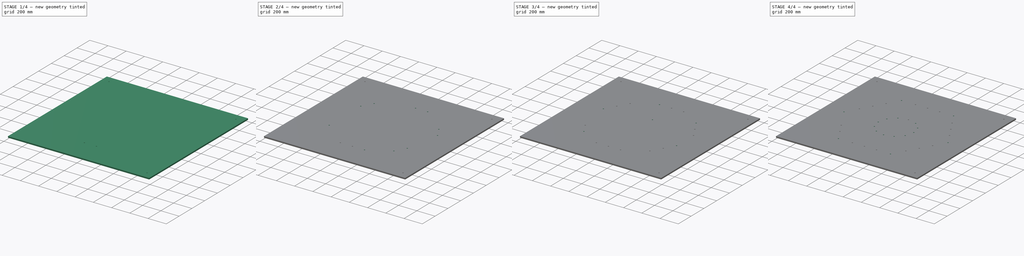
[diagram: build sequence overview — one tinted view per stage of 4, left to right]
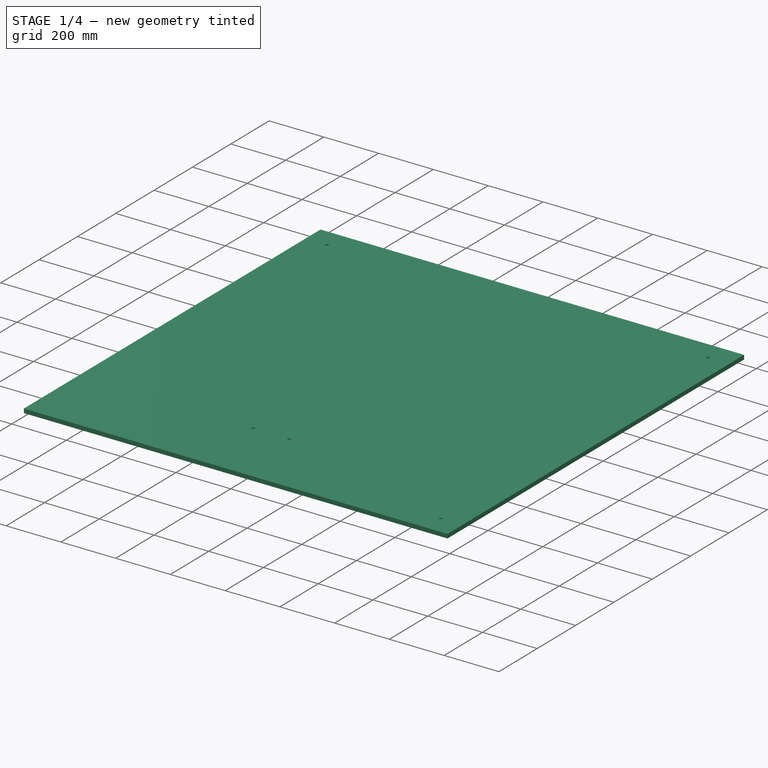
[diagram: stage 1 of 4 — iso view after this stage's code; geometry added in this stage tinted green]
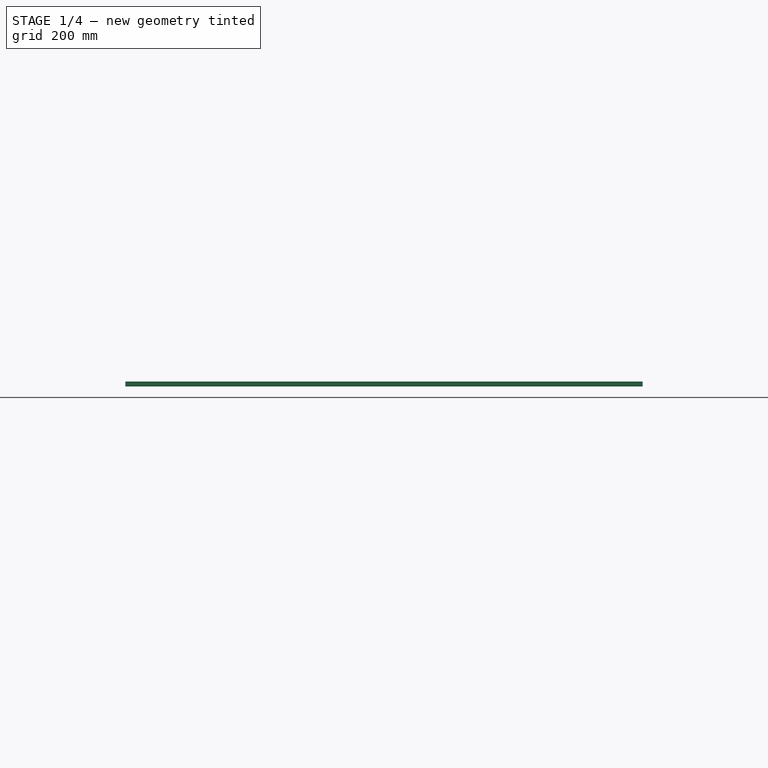
[diagram: stage 1 of 4 — front view after this stage's code; geometry added in this stage tinted green]
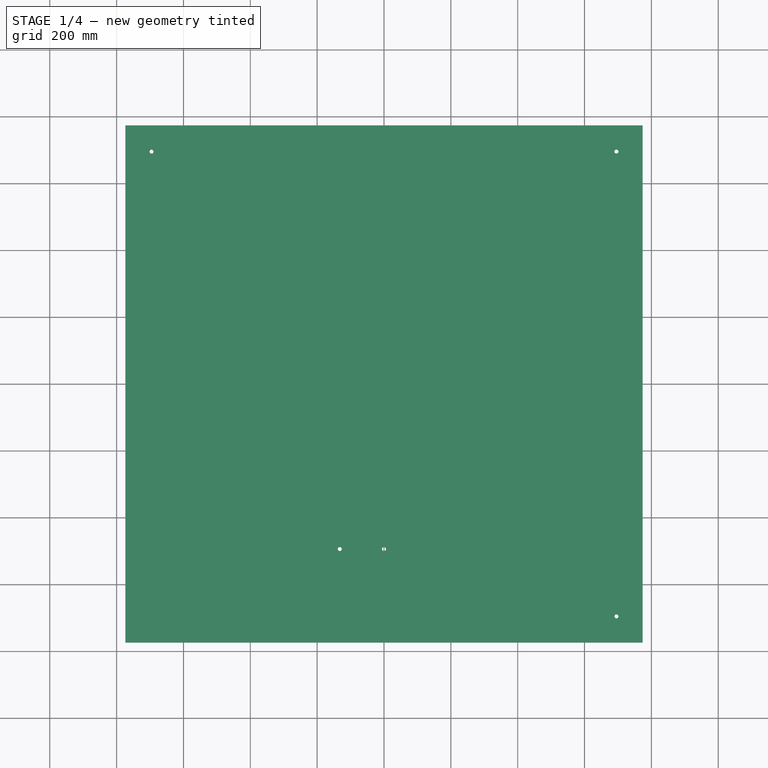
[diagram: stage 1 of 4 — top view after this stage's code; geometry added in this stage tinted green]
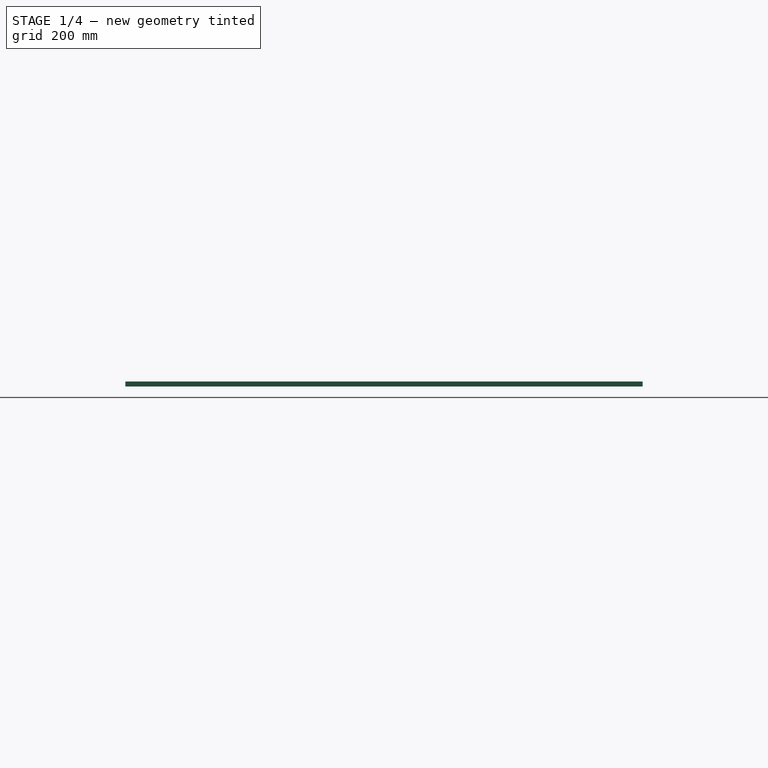
[diagram: stage 1 of 4 — right view after this stage's code; geometry added in this stage tinted green]
FCSTD DOCUMENT  (FreeCAD 1.0R39109 (Git))
Label: Stator_Mold_BoltShaftPattern_Hexagonal
License: All rights reserved
LicenseURL: http://en.wikipedia.org/wiki/All_rights_reserved
objects: Sketcher::SketchObject×5, PartDesign::Pocket×5, PartDesign::PolarPattern×5, Spreadsheet::Sheet×1, PartDesign::Plane×1, PartDesign::SubShapeBinder×1, PartDesign::FeatureBase×1, PartDesign::Body×1
note: 40 computed .brp shape members not serialized (recipe doc carries the construction recipe); baked Part::Feature solids carry a one-line shape summary decoded from their .brp
EXTERNAL_REF file=../../../Master_of_Puppets.FCStd obj=Alternator
EXTERNAL_REF file=../../../Master_of_Puppets.FCStd obj=Spreadsheet
EXTERNAL_REF file=Stator_Mold_Base.FCStd obj=PocketBody

FEATURE [Spreadsheet::Sheet] Spreadsheet
  cells = A1='Inputs; A2='StatorThickness; B2='StatorMoldBoltDiameter; C2='IslandInnerRadius; A3(StatorThickness)==Master_of_Puppets#Spreadsheet.StatorThickness; B3(StatorMoldBoltDiameter)==Master_of_Puppets#Alternator.StatorMoldBoltDiameter; C3(IslandInnerRadius)==Master_of_Puppets#Alternator.IslandInnerRadius; A4='LengthMiddleHoles; B4='StatorMoldIslandNumberOfBolts; A5(LengthMiddleHoles)==Master_of_Puppets#Alternator.LengthMiddleHoles; B5(StatorMoldIslandNumberOfBolts)==Master_of_Puppets#Alternator.StatorMoldIslandNumberOfBolts; A6='FirstOuterBoltHolePolarPatternNumberOfOccurrences; B6='FirstOuterBoltHolePolarPatternAngle; A7(FirstOuterBoltHolePolarPatternNumberOfOccurrences)==Master_of_Puppets#Alternator.FirstOuterBoltHolePolarPatternNumberOfOccurrences; B7(FirstOuterBoltHolePolarPatternAngle)==Master_of_Puppets#Alternator.FirstOuterBoltHolePolarPatternAngle; A8='SecondOuterBoltHolePolarPatternNumberOfOccurrences; B8='SecondOuterBoltHolePolarPatternAngle; A9(SecondOuterBoltHolePolarPatternNumberOfOccurrences)==Master_of_Puppets#Alternator.SecondOuterBoltHolePolarPatternNumberOfOccurrences; B9(SecondOuterBoltHolePolarPatternAngle)==Master_of_Puppets#Alternator.SecondOuterBoltHolePolarPatternAngle; A10='Calculated; A11='StatorMoldBoltRadius; A12(StatorMoldBoltRadius)==StatorMoldBoltDiameter / 2
FEATURE [PartDesign::Plane] DatumPlane001  label="DatumPlane"
  AttachmentOffset = pos=(0,0,15) rot=(0,0,1;0rad)
  AttachmentSupport = -> [XY_Plane]
  Length = 1856.96
  MapMode = 5
  Placement = pos=(0,0,15) rot=(0,0,1;0rad)
  ResizeMode = 0
  Width = 1856.96
  expr: .AttachmentOffset.Base.z = Spreadsheet.StatorThickness
FEATURE [Sketcher::SketchObject] Sketch006  label="FirstOuterBoltHoleSketch"
  ArcFitTolerance = 0
  AttachmentSupport = -> [DatumPlane001]
  FullyConstrained = true
  MakeInternals = false
  MapMode = 5
  Placement = pos=(0,0,15) rot=(0,0,1;0rad)
  expr: Constraints[18] = Spreadsheet.LengthMiddleHoles
  expr: Constraints[20] = Spreadsheet.StatorMoldBoltRadius
  sketch-geometry (9):
    g0: LineSegment [constr] StartX=570.277 StartY=5.68e-14 StartZ=0 EndX=285.139 EndY=493.875 EndZ=0
    g1: LineSegment [constr] StartX=285.139 StartY=493.875 StartZ=0 EndX=-285.139 EndY=493.875 EndZ=0
    g2: LineSegment [constr] StartX=-285.139 StartY=493.875 StartZ=0 EndX=-570.277 EndY=-5.68e-14 EndZ=0
    g3: LineSegment [constr] StartX=-570.277 StartY=-5.68e-14 StartZ=0 EndX=-285.139 EndY=-493.875 EndZ=0
    g4: LineSegment [constr] StartX=-285.139 StartY=-493.875 StartZ=0 EndX=285.139 EndY=-493.875 EndZ=0
    g5: LineSegment [constr] StartX=285.139 StartY=-493.875 StartZ=0 EndX=570.277 EndY=5.68e-14 EndZ=0
    g6: Circle [constr] CenterX=0 CenterY=0 CenterZ=0 NormalX=0 NormalY=0 NormalZ=1 AngleXU=0 Radius=570.277
    g7: Circle CenterX=-132.333 CenterY=-493.875 CenterZ=0 NormalX=0 NormalY=0 NormalZ=1 AngleXU=0 Radius=6
    g8: LineSegment [constr] StartX=-132.333 StartY=-493.875 StartZ=0 EndX=0 EndY=0 EndZ=0
  constraints (21):
    c: Coincident(g0,g1)
    c: Coincident(g1,g2)
    c: Coincident(g2,g3)
    c: Coincident(g3,g4)
    c: Coincident(g4,g5)
    c: Coincident(g5,g0)
    c: Equal(g0, g1-g5) x5
    c: PointOnObject(g0,g6)
    c: PointOnObject(g1,g6)
    c: PointOnObject(g2,g6)
    c: PointOnObject(g3,g6)
    c: PointOnObject(g4,g6)
    c: PointOnObject(g5,g6)
    c: Coincident(g6,g-1)
    c: Radius(g6) = 570.277
    c: Horizontal(g1)
    c: Radius(g7) = 6
    c: PointOnObject(g7,g4)
    c: Coincident(g8,g7)
    c: Coincident(g8,g6)
    c: Angle(g-2,g8) = 2.87979
FEATURE [PartDesign::SubShapeBinder] Binder
  BindCopyOnChange = 0
  BindMode = 0
  ClaimChildren = true
  Context = -> Body [Binder.]
  Fuse = false
  MakeFace = true
  OffsetFill = false
  OffsetIntersection = false
  OffsetJoinType = 0
  OffsetOpenResult = false
  PartialLoad = false
  Refine = true
  Relative = true
  Support = -> [<external Stator_Mold_Base.FCStd>#PocketBody]
  _Version = 2
FEATURE [PartDesign::FeatureBase] BaseFeature
  BaseFeature = -> Binder
  Suppressed = false
FEATURE [PartDesign::Pocket] Pocket002  label="FirstOuterBoltHolePocket"
  BaseFeature = -> BaseFeature
  Direction = (0,0,-1)
  Length = 5
  Length2 = 100
  Profile = -> Sketch006
  Suppressed = false
  Type = 1
FEATURE [Sketcher::SketchObject] Sketch  label="InnerBoltHolesSketch"
  ArcFitTolerance = 0
  AttachmentSupport = -> [DatumPlane001]
  FullyConstrained = true
  MakeInternals = false
  MapMode = 5
  Placement = pos=(0,0,15) rot=(0,0,1;0rad)
  expr: Constraints[2] = Spreadsheet.StatorMoldBoltRadius
  expr: Constraints[3] = Spreadsheet.IslandInnerRadius
  sketch-geometry (2):
    g0: Circle [constr] CenterX=0 CenterY=0 CenterZ=0 NormalX=0 NormalY=0 NormalZ=1 AngleXU=0 Radius=194.822
    g1: Circle CenterX=0 CenterY=194.822 CenterZ=0 NormalX=0 NormalY=0 NormalZ=1 AngleXU=0 Radius=6
  constraints (5):
    c: Coincident(g0,g-1)
    c: PointOnObject(g1,g0)
    c: Radius(g1) = 6
    c: Radius(g0) = 194.822
    c: PointOnObject(g1,g-2)
FEATURE [Sketcher::SketchObject] Sketch007  label="CornerBoltSketch"
  ArcFitTolerance = 0
  AttachmentSupport = -> [DatumPlane001]
  FullyConstrained = true
  MakeInternals = false
  MapMode = 5
  Placement = pos=(0,0,15) rot=(0,0,1;0rad)
  expr: Constraints[18] = Spreadsheet.LengthMiddleHoles
  expr: Constraints[21] = Spreadsheet.StatorMoldBoltRadius
  sketch-geometry (8):
    g0: LineSegment [constr] StartX=285.139 StartY=493.875 StartZ=0 EndX=-285.139 EndY=493.875 EndZ=0
    g1: LineSegment [constr] StartX=-285.139 StartY=493.875 StartZ=0 EndX=-570.277 EndY=0 EndZ=0
    g2: LineSegment [constr] StartX=-570.277 StartY=0 StartZ=0 EndX=-285.139 EndY=-493.875 EndZ=0
    g3: LineSegment [constr] StartX=-285.139 StartY=-493.875 StartZ=0 EndX=285.139 EndY=-493.875 EndZ=0
    g4: LineSegment [constr] StartX=285.139 StartY=-493.875 StartZ=0 EndX=570.277 EndY=0 EndZ=0
    g5: LineSegment [constr] StartX=570.277 StartY=0 StartZ=0 EndX=285.139 EndY=493.875 EndZ=0
    g6: Circle [constr] CenterX=0 CenterY=0 CenterZ=0 NormalX=0 NormalY=0 NormalZ=1 AngleXU=0 Radius=570.277
    g7: Circle CenterX=285.139 CenterY=493.875 CenterZ=0 NormalX=0 NormalY=0 NormalZ=1 AngleXU=0 Radius=6
  constraints (18):
    c: Coincident(g0,g1)
    c: Coincident(g1,g2)
    c: Coincident(g2,g3)
    c: Coincident(g3,g4)
    c: Coincident(g4,g5)
    c: Coincident(g5,g0)
    c: Equal(g0, g1-g5) x5
    c: PointOnObject(g0,g6)
    c: PointOnObject(g1,g6)
    c: PointOnObject(g2,g6)
    c: PointOnObject(g3,g6)
    c: PointOnObject(g4,g6)
    c: PointOnObject(g5,g6)
    c: Coincident(g6,g-1)
    c: Radius(g6) = 570.277
    c: Horizontal(g1,g4)
    c: Coincident(g7,g0)
    c: Radius(g7) = 6
FEATURE [Sketcher::SketchObject] Sketch008  label="SecondOuterBoltHoleSketch"
  ArcFitTolerance = 0
  AttachmentSupport = -> [DatumPlane001]
  FullyConstrained = true
  MakeInternals = false
  MapMode = 5
  Placement = pos=(0,0,15) rot=(0,0,1;0rad)
  expr: Constraints[18] = Spreadsheet.LengthMiddleHoles
  expr: Constraints[20] = Spreadsheet.StatorMoldBoltRadius
  sketch-geometry (8):
    g0: LineSegment [constr] StartX=570.277 StartY=-2.842e-13 StartZ=0 EndX=285.139 EndY=493.875 EndZ=0
    g1: LineSegment [constr] StartX=285.139 StartY=493.875 StartZ=0 EndX=-285.139 EndY=493.875 EndZ=0
    g2: LineSegment [constr] StartX=-285.139 StartY=493.875 StartZ=0 EndX=-570.277 EndY=1.4211e-12 EndZ=0
    g3: LineSegment [constr] StartX=-570.277 StartY=1.4211e-12 StartZ=0 EndX=-285.139 EndY=-493.875 EndZ=0
    g4: LineSegment [constr] StartX=-285.139 StartY=-493.875 StartZ=0 EndX=285.139 EndY=-493.875 EndZ=0
    g5: LineSegment [constr] StartX=285.139 StartY=-493.875 StartZ=0 EndX=570.277 EndY=-2.842e-13 EndZ=0
    g6: Circle [constr] CenterX=0 CenterY=0 CenterZ=0 NormalX=0 NormalY=0 NormalZ=1 AngleXU=0 Radius=570.277
    g7: Circle CenterX=0 CenterY=-493.875 CenterZ=0 NormalX=0 NormalY=0 NormalZ=1 AngleXU=0 Radius=6
  constraints (19):
    c: Coincident(g0,g1)
    c: Coincident(g1,g2)
    c: Coincident(g2,g3)
    c: Coincident(g3,g4)
    c: Coincident(g4,g5)
    c: Coincident(g5,g0)
    c: Equal(g0, g1-g5) x5
    c: PointOnObject(g0,g6)
    c: PointOnObject(g1,g6)
    c: PointOnObject(g2,g6)
    c: PointOnObject(g3,g6)
    c: PointOnObject(g4,g6)
    c: PointOnObject(g5,g6)
    c: Coincident(g6,g-1)
    c: Radius(g6) = 570.277
    c: Horizontal(g1)
    c: Radius(g7) = 6
    c: PointOnObject(g7,g4)
    c: PointOnObject(g7,g-2)
FEATURE [PartDesign::Pocket] Pocket004  label="SecondOuterBoltHolePocket"
  BaseFeature = -> Pocket002
  Direction = (0,0,-1)
  Length = 5
  Length2 = 5
  Profile = -> Sketch008
  Refine = true
  Suppressed = false
  Type = 1
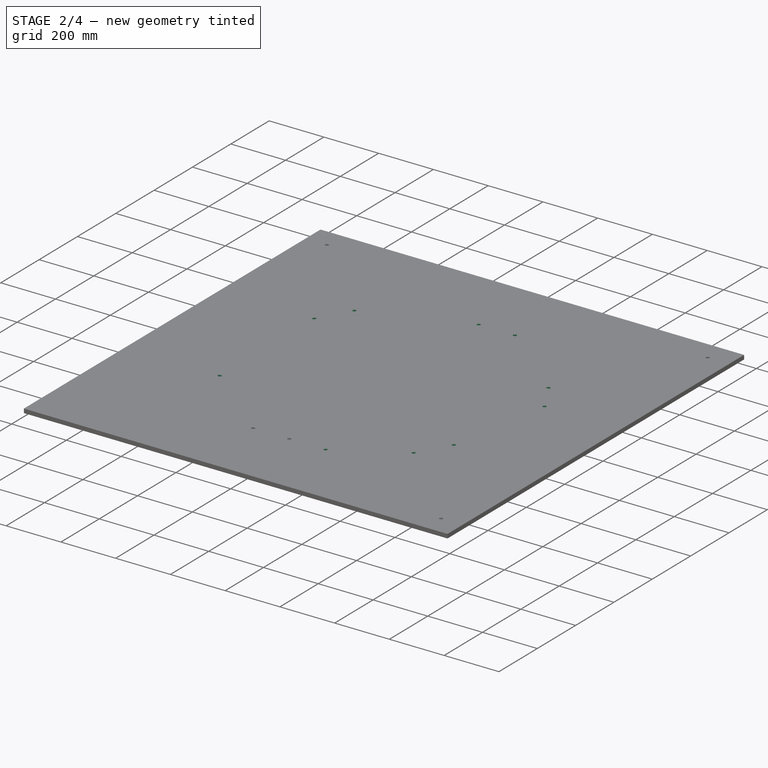
[diagram: stage 2 of 4 — iso view after this stage's code; geometry added in this stage tinted green]
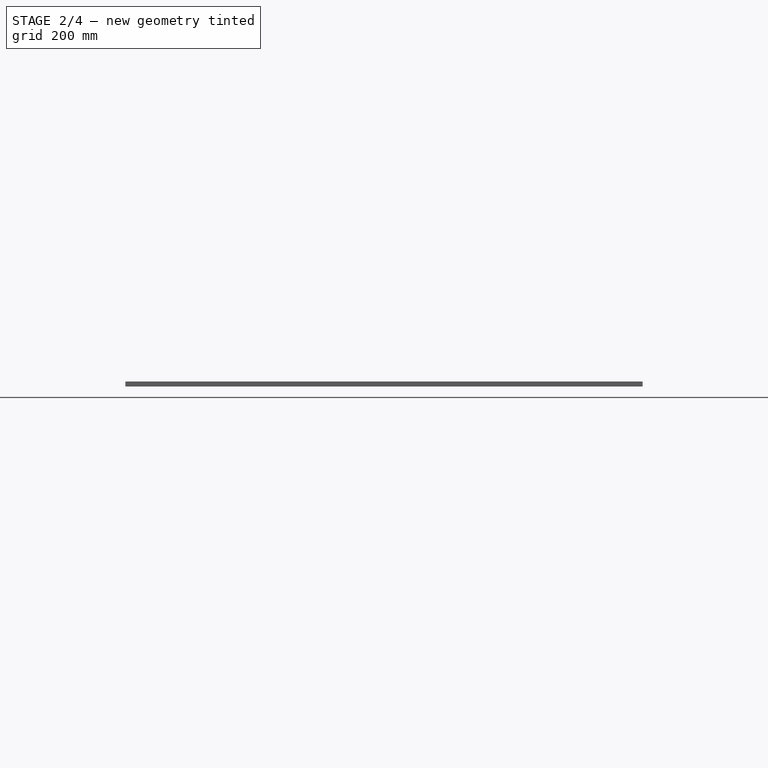
[diagram: stage 2 of 4 — front view after this stage's code; geometry added in this stage tinted green]
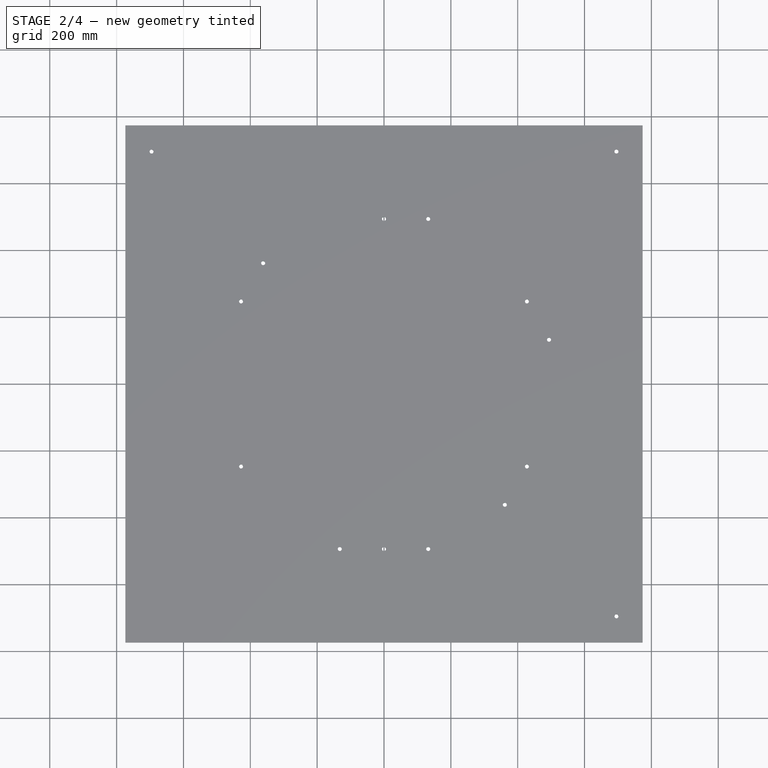
[diagram: stage 2 of 4 — top view after this stage's code; geometry added in this stage tinted green]
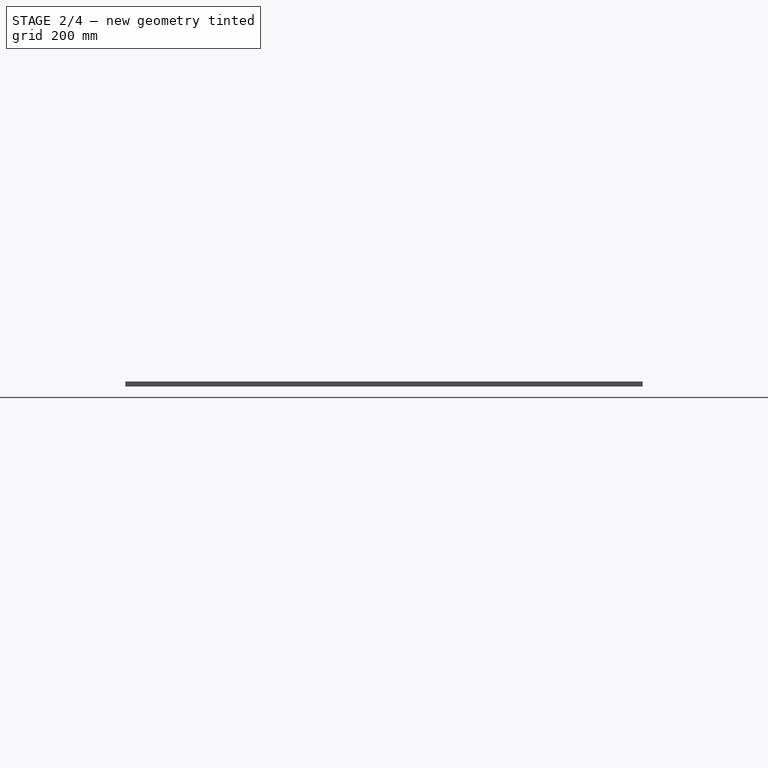
[diagram: stage 2 of 4 — right view after this stage's code; geometry added in this stage tinted green]
FEATURE [Sketcher::SketchObject] Sketch009  label="ThirdOuterBoltHoleSketch"
  ArcFitTolerance = 0
  AttachmentSupport = -> [DatumPlane001]
  FullyConstrained = true
  MakeInternals = false
  MapMode = 5
  Placement = pos=(0,0,15) rot=(0,0,1;0rad)
  expr: Constraints[18] = Spreadsheet.LengthMiddleHoles
  expr: Constraints[20] = Spreadsheet.StatorMoldBoltRadius
  sketch-geometry (9):
    g0: LineSegment [constr] StartX=570.277 StartY=5.68e-14 StartZ=0 EndX=285.139 EndY=493.875 EndZ=0
    g1: LineSegment [constr] StartX=285.139 StartY=493.875 StartZ=0 EndX=-285.139 EndY=493.875 EndZ=0
    g2: LineSegment [constr] StartX=-285.139 StartY=493.875 StartZ=0 EndX=-570.277 EndY=0 EndZ=0
    g3: LineSegment [constr] StartX=-570.277 StartY=0 StartZ=0 EndX=-285.139 EndY=-493.875 EndZ=0
    g4: LineSegment [constr] StartX=-285.139 StartY=-493.875 StartZ=0 EndX=285.139 EndY=-493.875 EndZ=0
    g5: LineSegment [constr] StartX=285.139 StartY=-493.875 StartZ=0 EndX=570.277 EndY=5.68e-14 EndZ=0
    g6: Circle [constr] CenterX=0 CenterY=0 CenterZ=0 NormalX=0 NormalY=0 NormalZ=1 AngleXU=0 Radius=570.277
    g7: Circle CenterX=132.333 CenterY=-493.875 CenterZ=0 NormalX=0 NormalY=0 NormalZ=1 AngleXU=0 Radius=6
    g8: LineSegment [constr] StartX=132.333 StartY=-493.875 StartZ=0 EndX=0 EndY=0 EndZ=0
  constraints (21):
    c: Coincident(g0,g1)
    c: Coincident(g1,g2)
    c: Coincident(g2,g3)
    c: Coincident(g3,g4)
    c: Coincident(g4,g5)
    c: Coincident(g5,g0)
    c: Equal(g0, g1-g5) x5
    c: PointOnObject(g0,g6)
    c: PointOnObject(g1,g6)
    c: PointOnObject(g2,g6)
    c: PointOnObject(g3,g6)
    c: PointOnObject(g4,g6)
    c: PointOnObject(g5,g6)
    c: Coincident(g6,g-1)
    c: Radius(g6) = 570.277
    c: Horizontal(g1)
    c: Radius(g7) = 6
    c: PointOnObject(g7,g4)
    c: Coincident(g8,g7)
    c: Coincident(g8,g6)
    c: Angle(g-2,g8) = 3.40339
FEATURE [PartDesign::Pocket] Pocket005  label="ThirdOuterBoltHolePocket"
  BaseFeature = -> Pocket004
  Direction = (0,0,-1)
  Length = 5
  Length2 = 5
  Profile = -> Sketch009
  ReferenceAxis = -> Sketch009 [N_Axis]
  Refine = true
  Suppressed = false
  Type = 1
FEATURE [PartDesign::PolarPattern] PolarPattern006  label="FirstOuterBoltHolePolarPattern"
  Angle = 240
  Axis = -> Sketch006 [N_Axis]
  BaseFeature = -> Pocket005
  Mode = 0
  Occurrences = 5
  Offset = 60
  Originals = -> [Pocket002]
  Suppressed = false
  TransformMode = 0
  expr: Angle = Spreadsheet.FirstOuterBoltHolePolarPatternAngle
  expr: Occurrences = Spreadsheet.FirstOuterBoltHolePolarPatternNumberOfOccurrences
FEATURE [PartDesign::PolarPattern] PolarPattern008  label="SecondOuterBoltHolePolarPattern"
  Angle = 360
  Axis = -> Sketch008 [N_Axis]
  BaseFeature = -> PolarPattern006
  Mode = 0
  Occurrences = 6
  Offset = 120
  Originals = -> [Pocket004]
  Refine = true
  Suppressed = false
  TransformMode = 0
  expr: Angle = Spreadsheet.SecondOuterBoltHolePolarPatternAngle
  expr: Occurrences = Spreadsheet.SecondOuterBoltHolePolarPatternNumberOfOccurrences
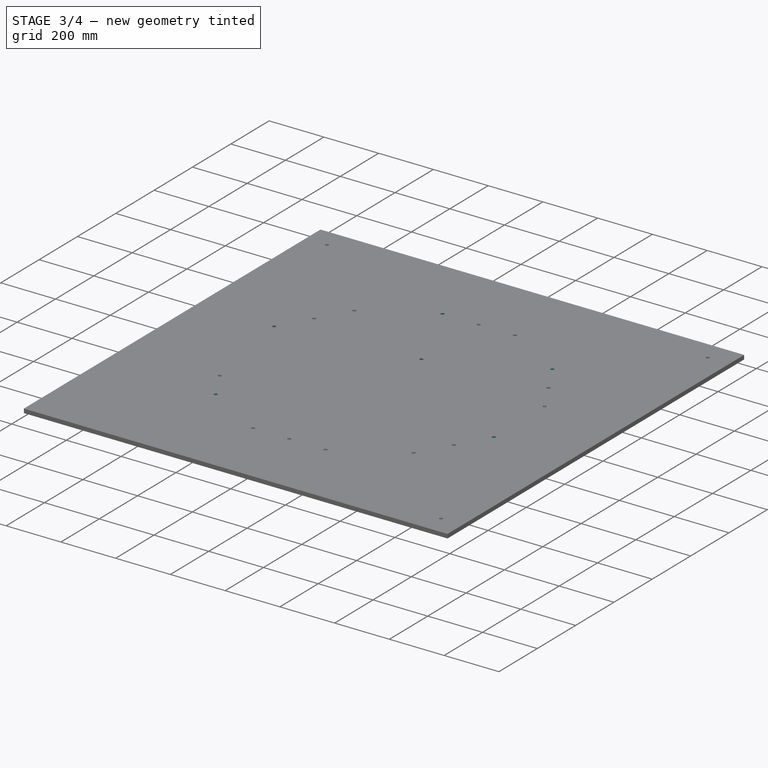
[diagram: stage 3 of 4 — iso view after this stage's code; geometry added in this stage tinted green]
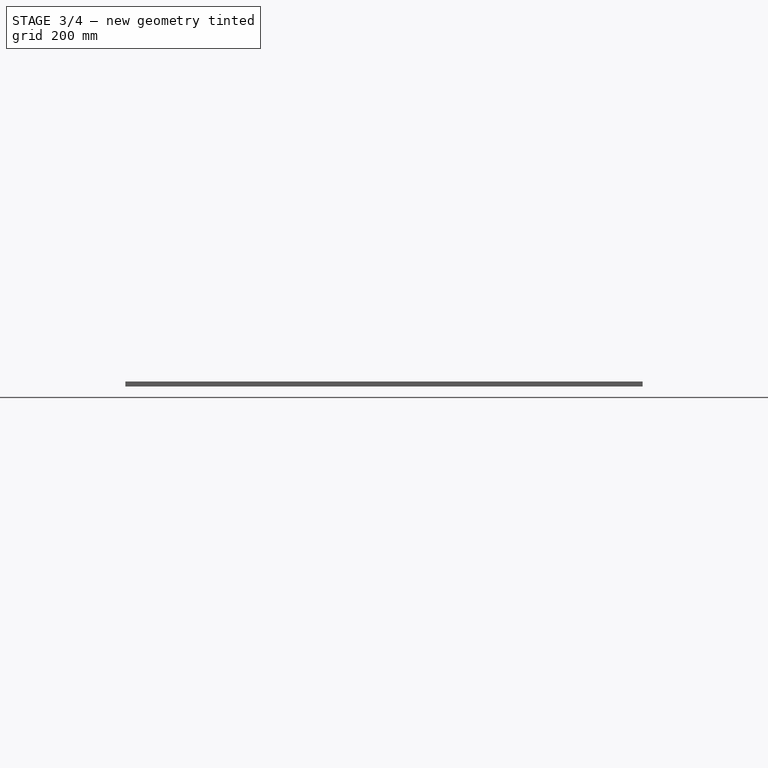
[diagram: stage 3 of 4 — front view after this stage's code; geometry added in this stage tinted green]
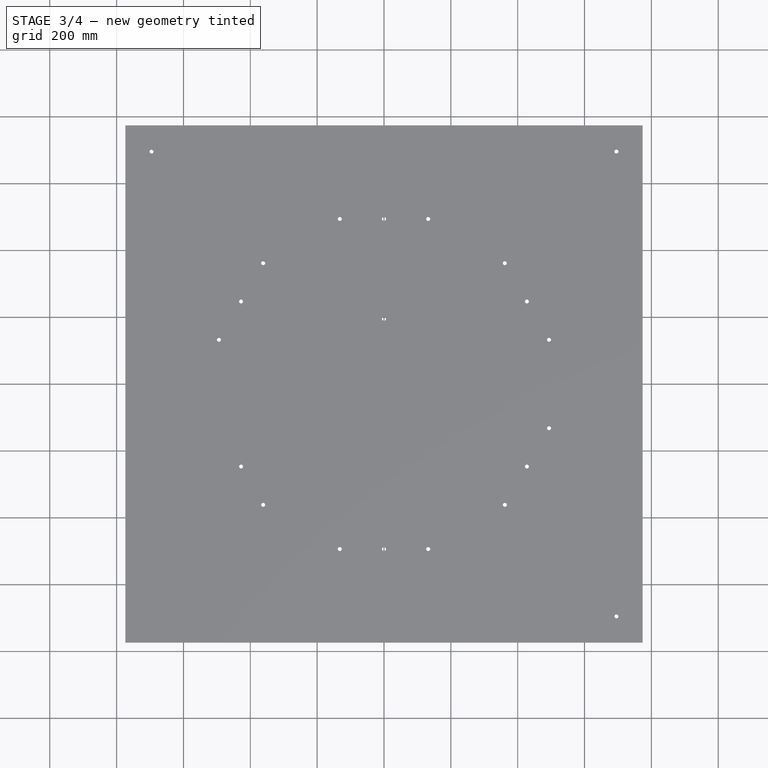
[diagram: stage 3 of 4 — top view after this stage's code; geometry added in this stage tinted green]
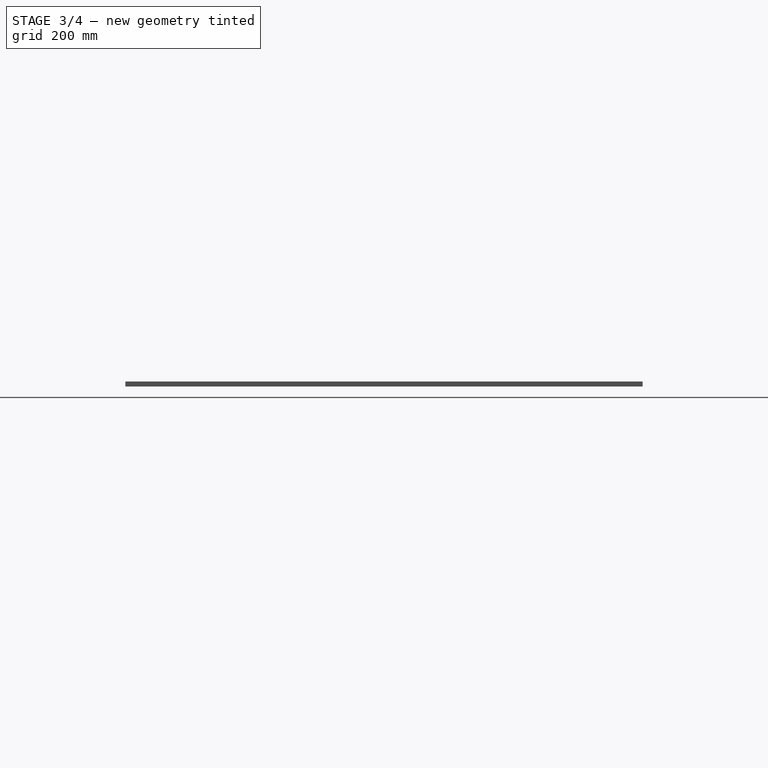
[diagram: stage 3 of 4 — right view after this stage's code; geometry added in this stage tinted green]
FEATURE [PartDesign::PolarPattern] PolarPattern009  label="ThirdOuterBoltHolePolarPattern"
  Angle = 360
  Axis = -> Sketch009 [N_Axis]
  BaseFeature = -> PolarPattern008
  Mode = 0
  Occurrences = 6
  Offset = 120
  Originals = -> [Pocket005]
  Refine = true
  Suppressed = false
  TransformMode = 0
FEATURE [PartDesign::Pocket] Pocket  label="InnerBoltHolesPocket"
  BaseFeature = -> PolarPattern009
  Direction = (0,0,-1)
  Length = 5
  Length2 = 100
  Profile = -> Sketch
  Suppressed = false
  Type = 1
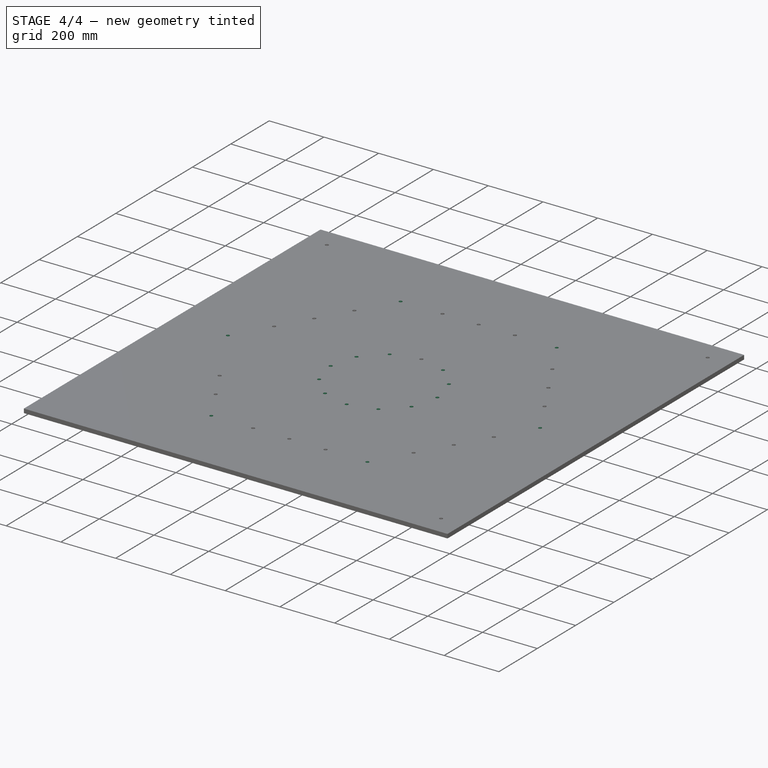
[diagram: stage 4 of 4 — iso view after this stage's code; geometry added in this stage tinted green]
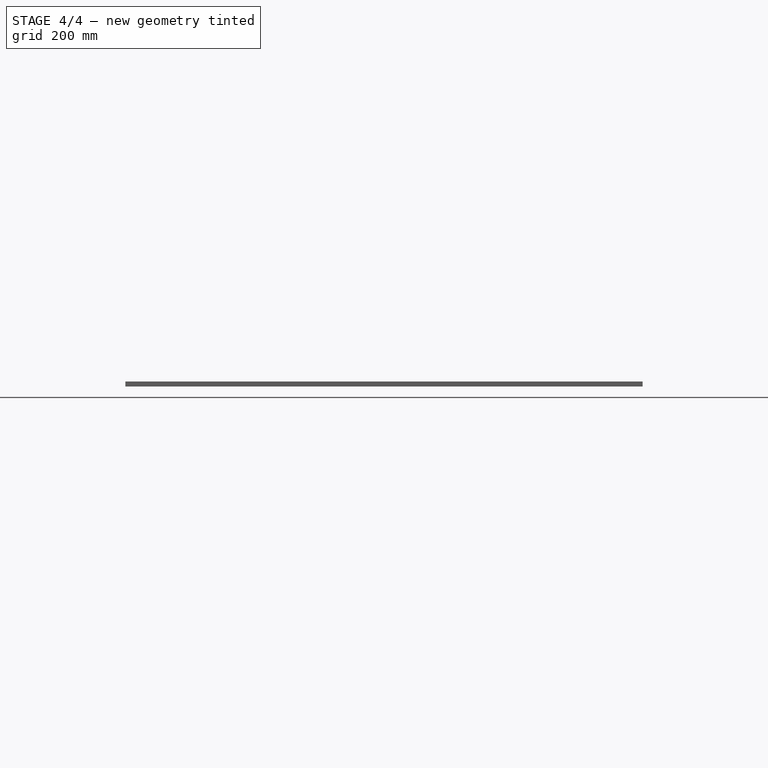
[diagram: stage 4 of 4 — front view after this stage's code; geometry added in this stage tinted green]
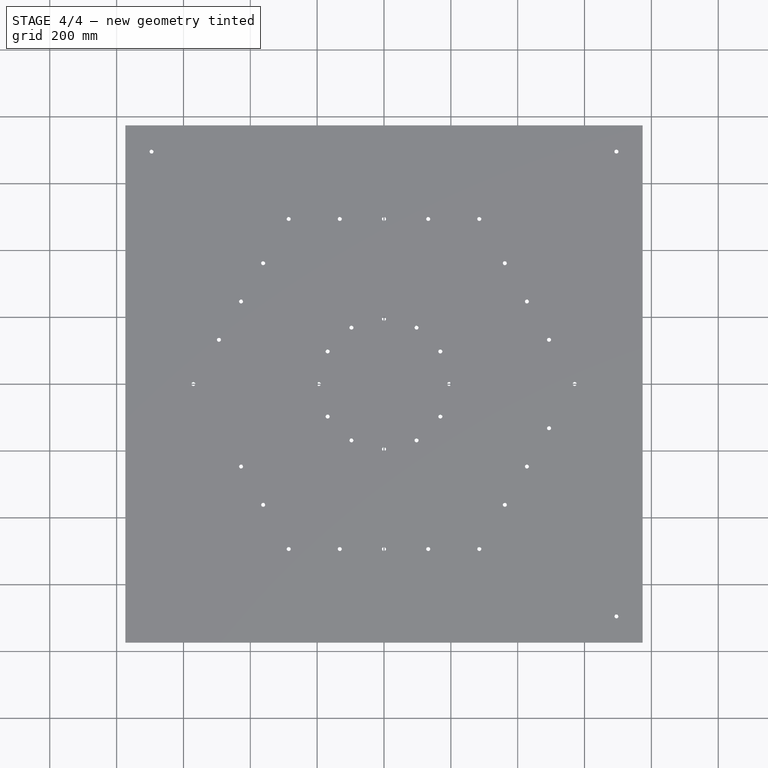
[diagram: stage 4 of 4 — top view after this stage's code; geometry added in this stage tinted green]
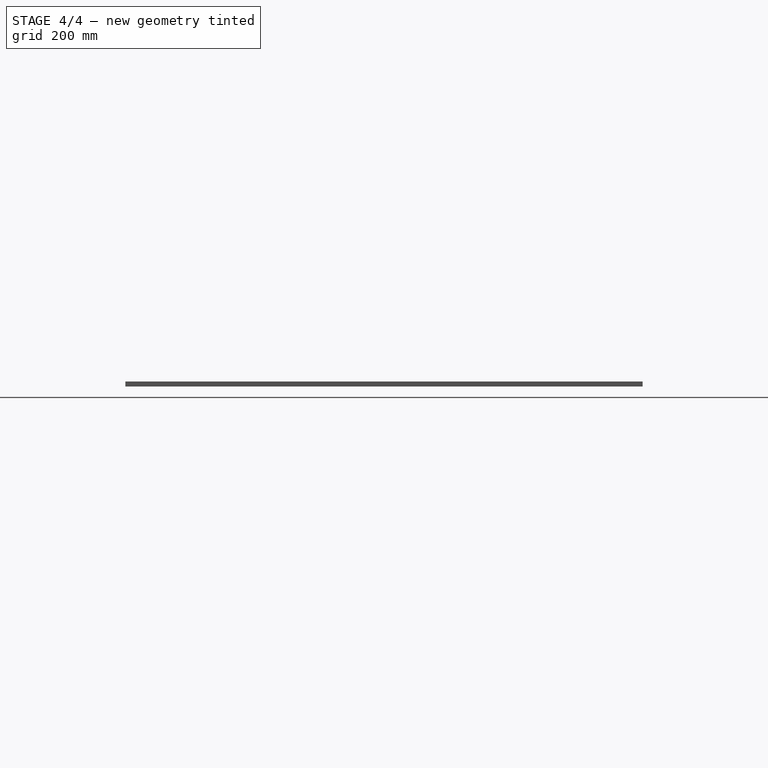
[diagram: stage 4 of 4 — right view after this stage's code; geometry added in this stage tinted green]
FEATURE [PartDesign::PolarPattern] PolarPattern  label="InnerBoltHolesPolarPattern"
  Angle = 360
  Axis = -> Sketch [N_Axis]
  BaseFeature = -> Pocket
  Mode = 0
  Occurrences = 12
  Offset = 120
  Originals = -> [Pocket]
  Suppressed = false
  TransformMode = 0
  expr: Occurrences = Spreadsheet.StatorMoldIslandNumberOfBolts
FEATURE [PartDesign::Pocket] Pocket003  label="CornerBoltPocket"
  BaseFeature = -> PolarPattern
  Direction = (0,0,-1)
  Length = 5
  Length2 = 100
  Profile = -> Sketch007
  Suppressed = false
  Type = 1
FEATURE [PartDesign::PolarPattern] PolarPattern007  label="CornerBoltPolarPattern"
  Angle = 360
  Axis = -> Sketch007 [N_Axis]
  BaseFeature = -> Pocket003
  Mode = 0
  Occurrences = 6
  Offset = 120
  Originals = -> [Pocket003]
  Suppressed = false
  TransformMode = 0
FEATURE [PartDesign::Body] Body  label="Stator_Mold_BoltShaftPattern"
  AllowCompound = false
  BaseFeature = -> Binder
  Group = -> [BaseFeature,DatumPlane001,Sketch006,Pocket002,Sketch008,Pocket004,Sketch009,Pocket005,Binder,Sketch,PolarPattern006,PolarPattern008,PolarPattern009,Pocket,PolarPattern,Sketch007,Pocket003,PolarPattern007]
  Origin = -> Origin
  Tip = -> PolarPattern007
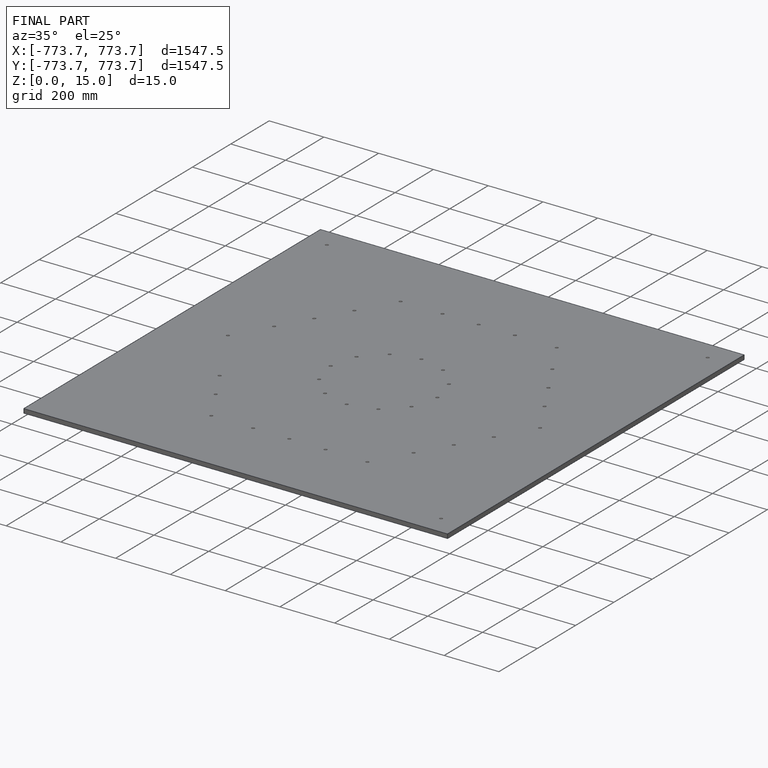
[diagram: finished part — iso view with bounding-box wireframe]
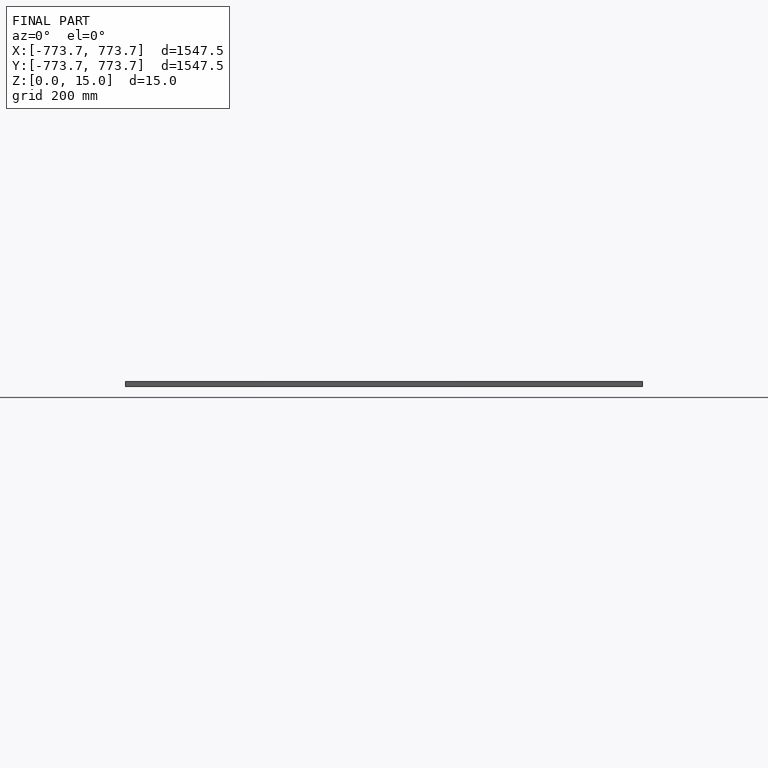
[diagram: finished part — front view with bounding-box wireframe]
